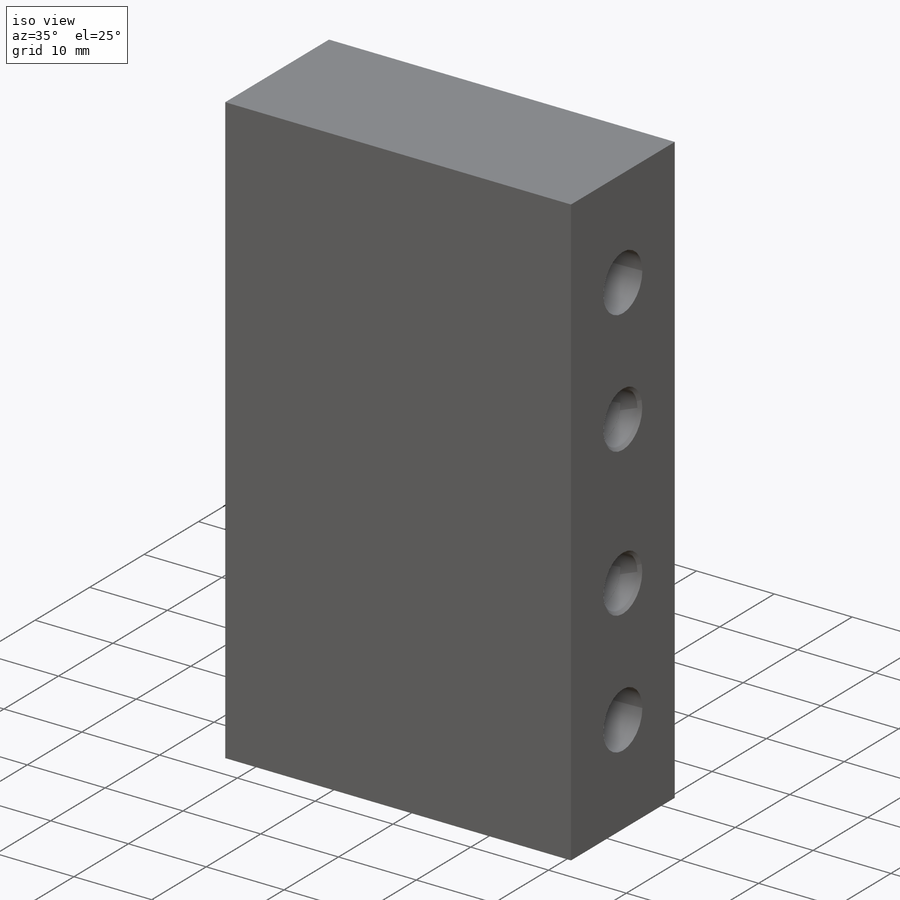
[diagram: iso view]
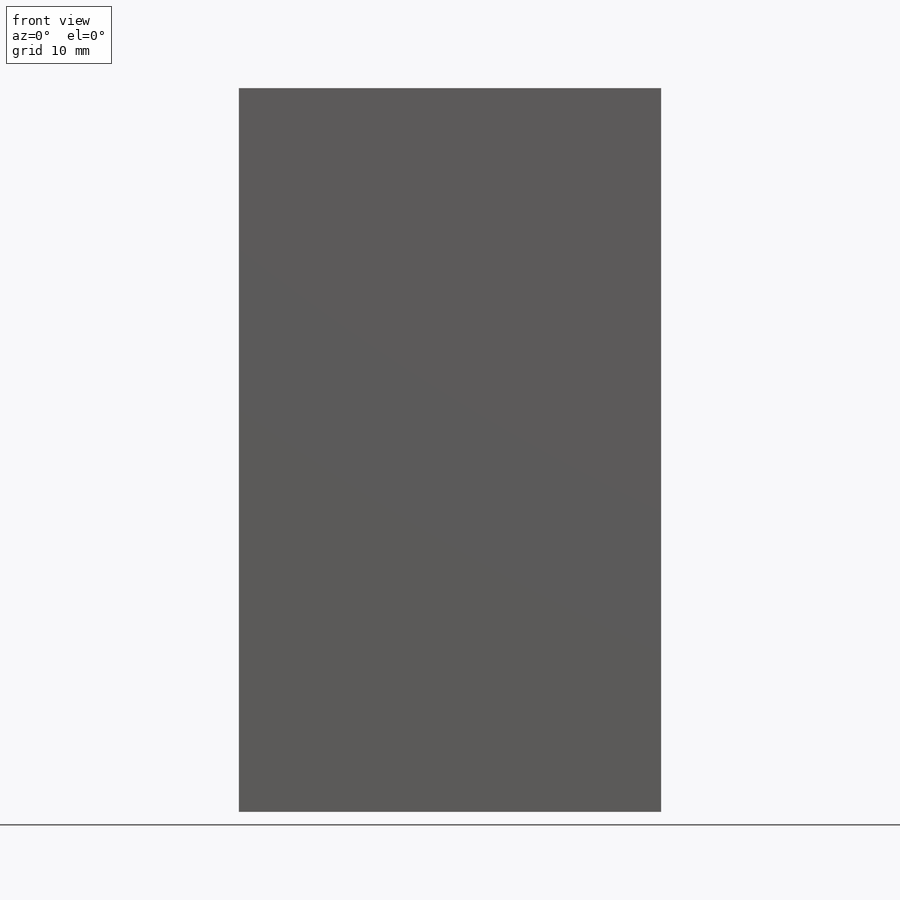
[diagram: front view]
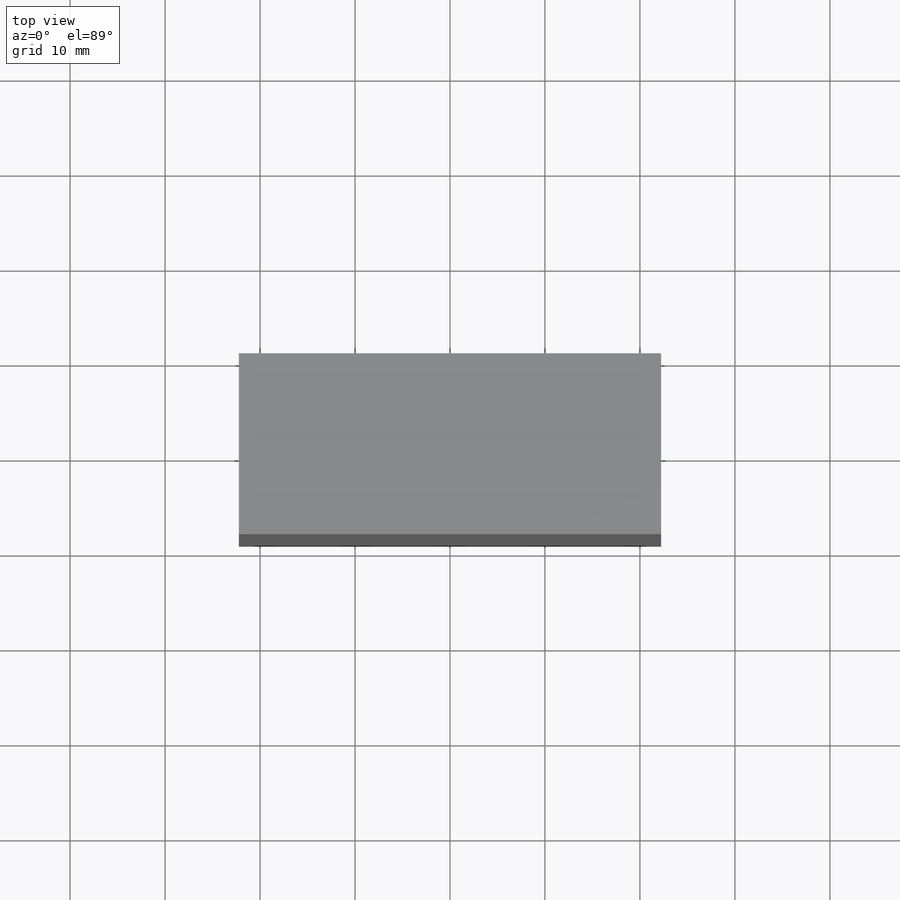
[diagram: top view]
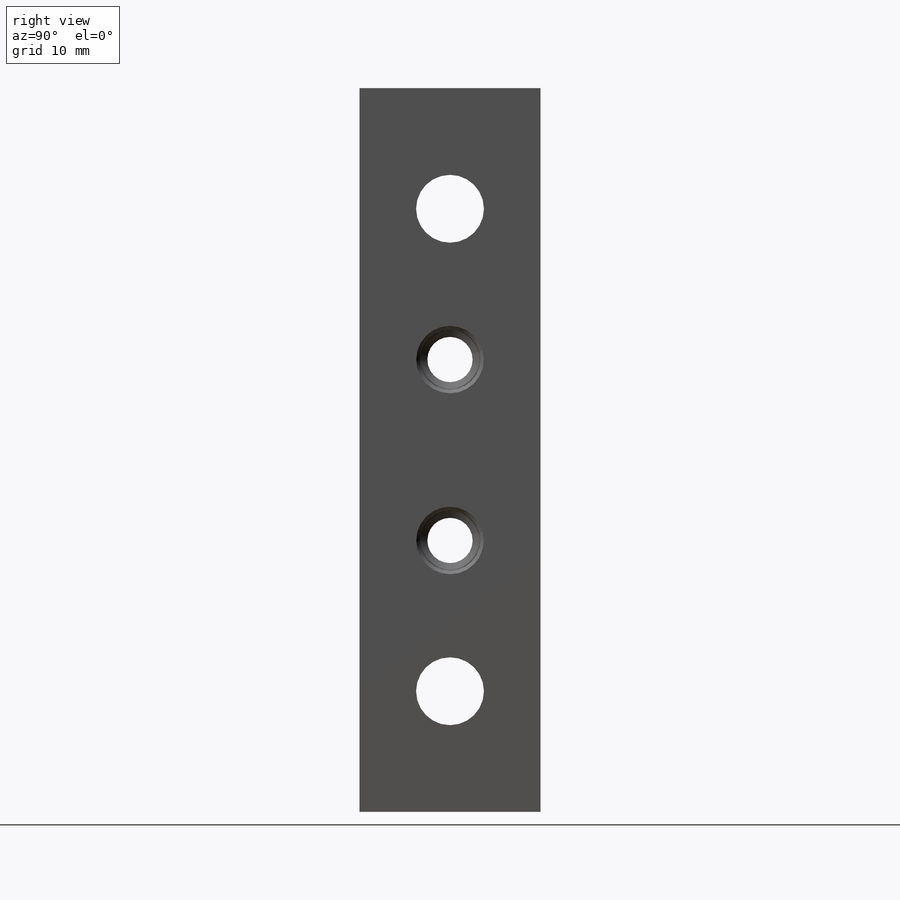
[diagram: right view]
SOLIDWORKS PART (.sldprt)
format: sldprt  version: not decoded by parser v0  size: 256,000 bytes
history: native  units: mm
features: sketch x7, hole x3, material x1, extrude x1, mirror x1 (+16 scaffold rows collapsed)
feature tree (29):
  scaffold x16  (default folders/planes/origin — collapsed)
  material  "6061-T6 Al"
  sketch  "Sketch1"  dims[D1=44.45mm D2=76.2mm D3=38.1mm]
  extrude  "Extrude1"  Depth=19.05mm
  hole  "1/4 Clearance Hole1"  Diameter=7.14248mm Depth=44.45mm
  sketch  "Sketch3"  dims[D1=12.7mm D2=12.7mm D3=9.525mm D4=9.525mm]
  sketch  "Sketch2"  dims[hole-wizard template sketch: 60 standard entries collapsed; hole parameters kept: c18.Thru Hole Depth=44.45mm]
  hole  "CBORE for 1/4 DOWEL"  Diameter=6.35mm Depth=9.652mm
  sketch  "Sketch5"  dims[c1.D1=19.05mm c1.D2=10.16mm c1.D3=9.525mm c1.D4=9.525mm c2.D2=28.575mm c2.D5=28.575mm]
  sketch  "Sketch4"  dims[hole-wizard template sketch: 26 standard entries collapsed; hole parameters kept: c8.Hole Dia.=6.35mm c8.Hole Depth=9.652mm c8.C'Bore Dia.=6.3754mm c8.C'Bore Depth=2.54mm c8.Near C'Sink Dia.=7.112mm c8.D6=~4.399409mm c8.Near C'Sink Angle=90.0deg c8.D7=~14.816244mm c8.Drill Angle=118.0deg]
  hole  "3/16 (0.1875) Diameter Hole1"  Diameter=4.7625mm Depth=44.45mm
  sketch  "Sketch7"
  sketch  "Sketch6"  dims[hole-wizard template sketch: 60 standard entries collapsed; hole parameters kept: c18.Thru Hole Depth=44.45mm]
  mirror  "Mirror1"
decode coverage: 10 of 12 modeling features carry decoded parameters
note: ~ marks probable driven/reference dimensions
note: suppression state not decoded; provenance and decode notes live in map.json
